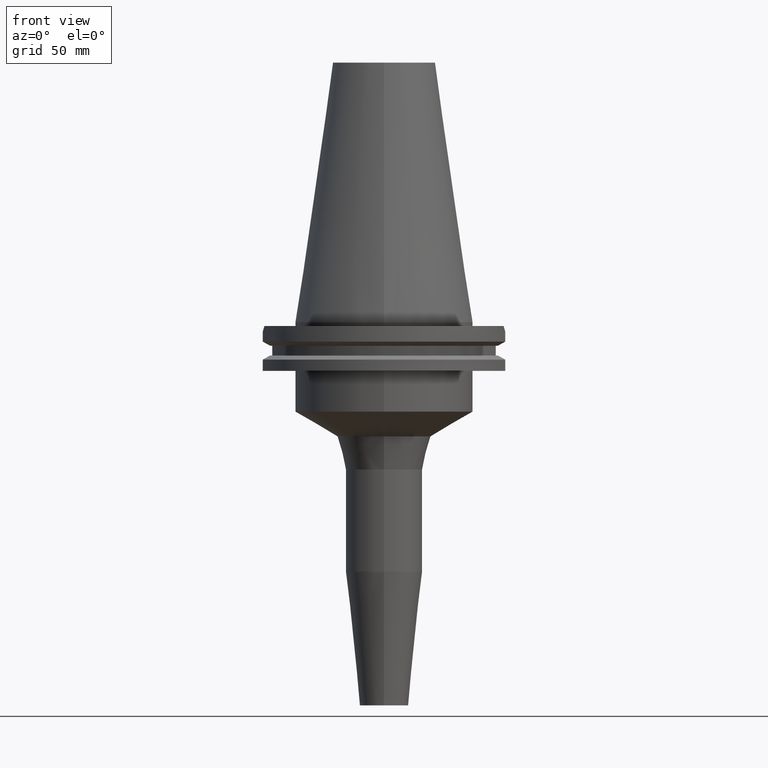
[diagram: clean part render]
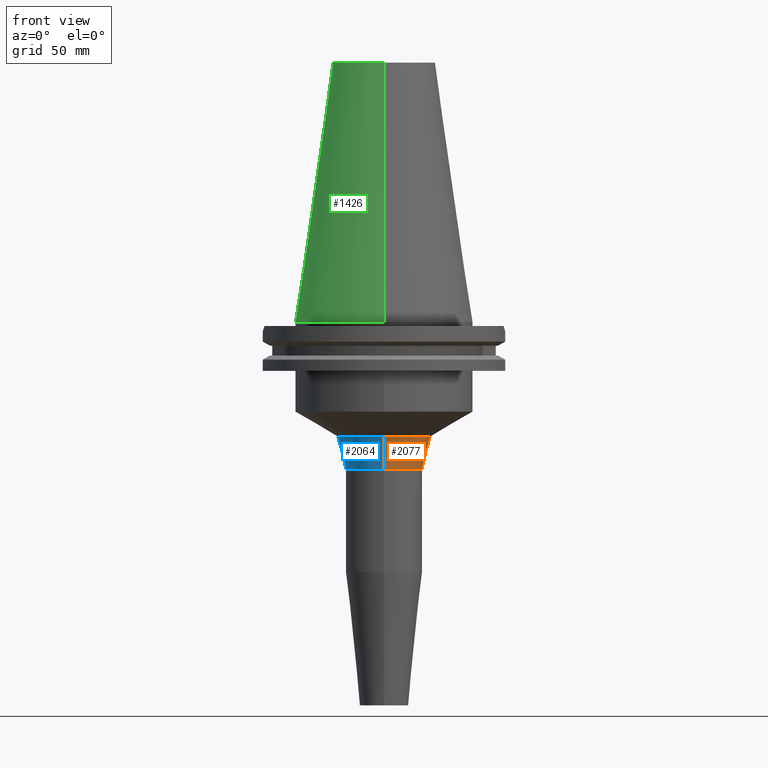
[diagram: same view with three faces highlighted in distinct colors, each labeled with its STEP entity id]
A machine part, front view with three faces highlighted in distinct colors.
Their STEP definitions:

[orange] entity #2077 — the highlighted conical surface has half-angle 14.268 deg.
#900=DIRECTION('',(0.E0,2.464577737473E-1,-9.691535305407E-1));
#901=VECTOR('',#900,1.334102165577E1);
#902=CARTESIAN_POINT('',(0.E0,-1.828799849680E1,-4.472850176129E1));
#903=LINE('',#902,#901);
#915=DIRECTION('',(0.E0,-2.464577737473E-1,-9.691535305407E-1));
#916=VECTOR('',#915,1.334102165577E1);
#917=CARTESIAN_POINT('',(0.E0,1.828799849680E1,-4.472850176129E1));
#918=LINE('',#917,#916);
#922=CARTESIAN_POINT('',(0.E0,0.E0,-5.7658E1));
#923=DIRECTION('',(0.E0,0.E0,-1.E0));
#924=DIRECTION('',(0.E0,1.E0,0.E0));
#925=AXIS2_PLACEMENT_3D('',#922,#923,#924);
#930=CARTESIAN_POINT('',(0.E0,0.E0,-4.472850176129E1));
#931=DIRECTION('',(0.E0,0.E0,1.E0));
#932=DIRECTION('',(0.E0,-1.E0,0.E0));
#933=AXIS2_PLACEMENT_3D('',#930,#931,#932);
#1244=CARTESIAN_POINT('',(0.E0,1.5E1,-5.7658E1));
#1245=VERTEX_POINT('',#1244);
#1246=CARTESIAN_POINT('',(0.E0,-1.5E1,-5.7658E1));
#1247=VERTEX_POINT('',#1246);
#1248=CARTESIAN_POINT('',(0.E0,1.828799849680E1,-4.472850176129E1));
#1249=VERTEX_POINT('',#1248);
#1250=CARTESIAN_POINT('',(0.E0,-1.828799849680E1,-4.472850176129E1));
#1251=VERTEX_POINT('',#1250);
#2065=CARTESIAN_POINT('',(0.E0,0.E0,-5.119325088064E1));
#2066=DIRECTION('',(0.E0,0.E0,1.E0));
#2067=DIRECTION('',(0.E0,1.E0,0.E0));
#2068=AXIS2_PLACEMENT_3D('',#2065,#2066,#2067);
#2069=CONICAL_SURFACE('',#2068,1.664399924840E1,1.4268E1);
#2070=ORIENTED_EDGE('',*,*,#2055,.T.);
#2072=ORIENTED_EDGE('',*,*,#2071,.T.);
#2073=ORIENTED_EDGE('',*,*,#2058,.F.);
#2074=ORIENTED_EDGE('',*,*,#2029,.T.);
#2075=EDGE_LOOP('',(#2070,#2072,#2073,#2074));
#2076=FACE_OUTER_BOUND('',#2075,.F.);
#926=CIRCLE('',#925,1.5E1);
#934=CIRCLE('',#933,1.828799849680E1);
#2029=EDGE_CURVE('',#1251,#1249,#934,.T.);
#2055=EDGE_CURVE('',#1249,#1245,#918,.T.);
#2058=EDGE_CURVE('',#1251,#1247,#903,.T.);
#2071=EDGE_CURVE('',#1245,#1247,#926,.T.);
#2077=ADVANCED_FACE('',(#2076),#2069,.T.);

[blue] entity #2064 — the highlighted conical surface has half-angle 14.268 deg.
#892=CARTESIAN_POINT('',(0.E0,0.E0,-4.472850176129E1));
#893=DIRECTION('',(0.E0,0.E0,-1.E0));
#894=DIRECTION('',(0.E0,-1.E0,0.E0));
#895=AXIS2_PLACEMENT_3D('',#892,#893,#894);
#900=DIRECTION('',(0.E0,2.464577737473E-1,-9.691535305407E-1));
#901=VECTOR('',#900,1.334102165577E1);
#902=CARTESIAN_POINT('',(0.E0,-1.828799849680E1,-4.472850176129E1));
#903=LINE('',#902,#901);
#907=CARTESIAN_POINT('',(0.E0,0.E0,-5.7658E1));
#908=DIRECTION('',(0.E0,0.E0,-1.E0));
#909=DIRECTION('',(0.E0,-1.E0,0.E0));
#910=AXIS2_PLACEMENT_3D('',#907,#908,#909);
#915=DIRECTION('',(0.E0,-2.464577737473E-1,-9.691535305407E-1));
#916=VECTOR('',#915,1.334102165577E1);
#917=CARTESIAN_POINT('',(0.E0,1.828799849680E1,-4.472850176129E1));
#918=LINE('',#917,#916);
#1244=CARTESIAN_POINT('',(0.E0,1.5E1,-5.7658E1));
#1245=VERTEX_POINT('',#1244);
#1246=CARTESIAN_POINT('',(0.E0,-1.5E1,-5.7658E1));
#1247=VERTEX_POINT('',#1246);
#1248=CARTESIAN_POINT('',(0.E0,1.828799849680E1,-4.472850176129E1));
#1249=VERTEX_POINT('',#1248);
#1250=CARTESIAN_POINT('',(0.E0,-1.828799849680E1,-4.472850176129E1));
#1251=VERTEX_POINT('',#1250);
#2050=CARTESIAN_POINT('',(0.E0,0.E0,-5.119325088064E1));
#2051=DIRECTION('',(0.E0,0.E0,1.E0));
#2052=DIRECTION('',(0.E0,1.E0,0.E0));
#2053=AXIS2_PLACEMENT_3D('',#2050,#2051,#2052);
#2054=CONICAL_SURFACE('',#2053,1.664399924840E1,1.4268E1);
#2056=ORIENTED_EDGE('',*,*,#2055,.F.);
#2057=ORIENTED_EDGE('',*,*,#2045,.F.);
#2059=ORIENTED_EDGE('',*,*,#2058,.T.);
#2061=ORIENTED_EDGE('',*,*,#2060,.T.);
#2062=EDGE_LOOP('',(#2056,#2057,#2059,#2061));
#2063=FACE_OUTER_BOUND('',#2062,.F.);
#896=CIRCLE('',#895,1.828799849680E1);
#911=CIRCLE('',#910,1.5E1);
#2045=EDGE_CURVE('',#1251,#1249,#896,.T.);
#2055=EDGE_CURVE('',#1249,#1245,#918,.T.);
#2058=EDGE_CURVE('',#1251,#1247,#903,.T.);
#2060=EDGE_CURVE('',#1247,#1245,#911,.T.);
#2064=ADVANCED_FACE('',(#2063),#2054,.T.);

[green] entity #1426 — the highlighted conical surface has half-angle 8.297 deg.
#17=CARTESIAN_POINT('',(0.E0,0.E0,1.016E2));
#18=DIRECTION('',(0.E0,0.E0,-1.E0));
#19=DIRECTION('',(0.E0,-1.E0,0.E0));
#20=AXIS2_PLACEMENT_3D('',#17,#18,#19);
#50=DIRECTION('',(0.E0,-1.443069799457E-1,-9.895329683942E-1));
#51=VECTOR('',#50,1.026746993229E2);
#52=CARTESIAN_POINT('',(0.E0,-2.010832422387E1,1.016E2));
#53=LINE('',#52,#51);
#57=CARTESIAN_POINT('',(0.E0,0.E0,8.242295734817E-13));
#58=DIRECTION('',(0.E0,0.E0,-1.E0));
#59=DIRECTION('',(0.E0,-1.E0,0.E0));
#60=AXIS2_PLACEMENT_3D('',#57,#58,#59);
#65=DIRECTION('',(0.E0,1.443069799457E-1,-9.895329683942E-1));
#66=VECTOR('',#65,1.026746993229E2);
#67=CARTESIAN_POINT('',(0.E0,2.010832422387E1,1.016E2));
#68=LINE('',#67,#66);
#1196=CARTESIAN_POINT('',(0.E0,-2.010832422388E1,1.016E2));
#1197=CARTESIAN_POINT('',(0.E0,2.010832422388E1,1.016E2));
#1198=VERTEX_POINT('',#1196);
#1199=VERTEX_POINT('',#1197);
#1386=CARTESIAN_POINT('',(0.E0,3.4925E1,4.689582056017E-13));
#1387=VERTEX_POINT('',#1386);
#1388=CARTESIAN_POINT('',(0.E0,-3.4925E1,4.689582056017E-13));
#1389=VERTEX_POINT('',#1388);
#1412=CARTESIAN_POINT('',(0.E0,0.E0,5.08E1));
#1413=DIRECTION('',(0.E0,0.E0,-1.E0));
#1414=DIRECTION('',(0.E0,-1.E0,0.E0));
#1415=AXIS2_PLACEMENT_3D('',#1412,#1413,#1414);
#1416=CONICAL_SURFACE('',#1415,2.751666211194E1,8.29715E0);
#1418=ORIENTED_EDGE('',*,*,#1417,.F.);
#1419=ORIENTED_EDGE('',*,*,#1399,.F.);
#1421=ORIENTED_EDGE('',*,*,#1420,.T.);
#1423=ORIENTED_EDGE('',*,*,#1422,.T.);
#1424=EDGE_LOOP('',(#1418,#1419,#1421,#1423));
#1425=FACE_OUTER_BOUND('',#1424,.F.);
#21=CIRCLE('',#20,2.010832422388E1);
#61=CIRCLE('',#60,3.4925E1);
#1399=EDGE_CURVE('',#1198,#1199,#21,.T.);
#1417=EDGE_CURVE('',#1199,#1387,#68,.T.);
#1420=EDGE_CURVE('',#1198,#1389,#53,.T.);
#1422=EDGE_CURVE('',#1389,#1387,#61,.T.);
#1426=ADVANCED_FACE('',(#1425),#1416,.T.);